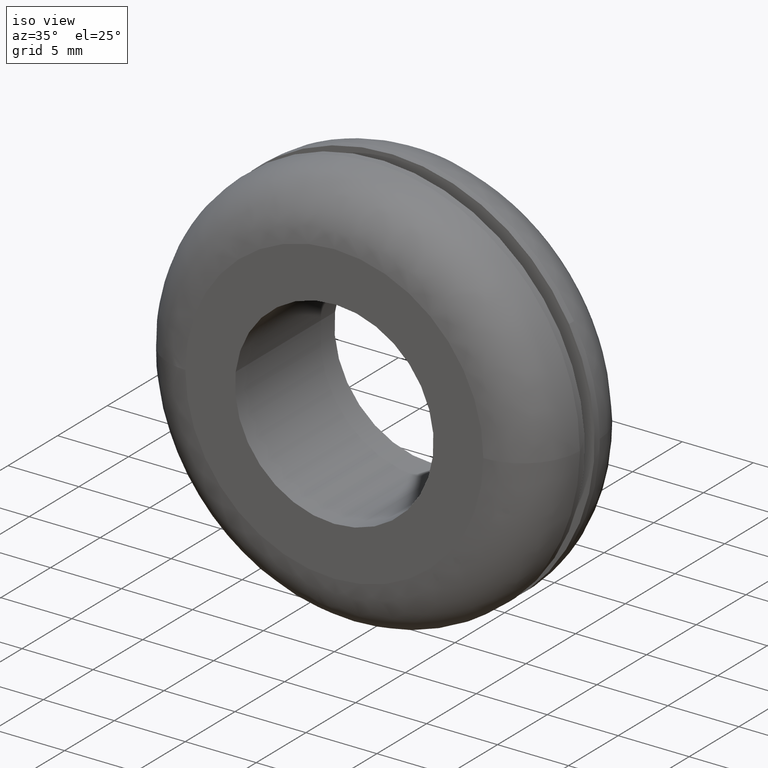
[diagram: clean part render]
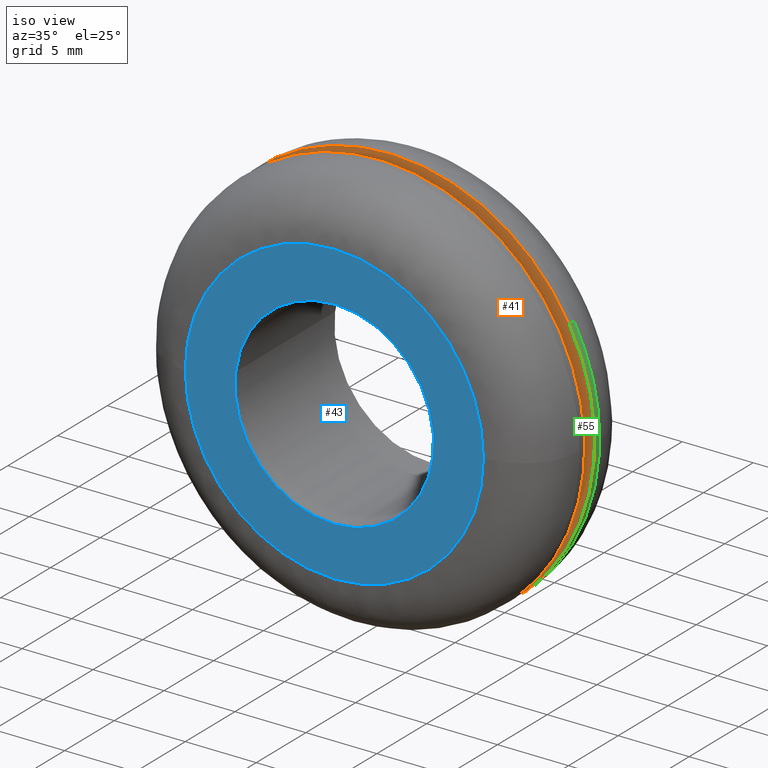
[diagram: same view with three faces highlighted in distinct colors, each labeled with its STEP entity id]
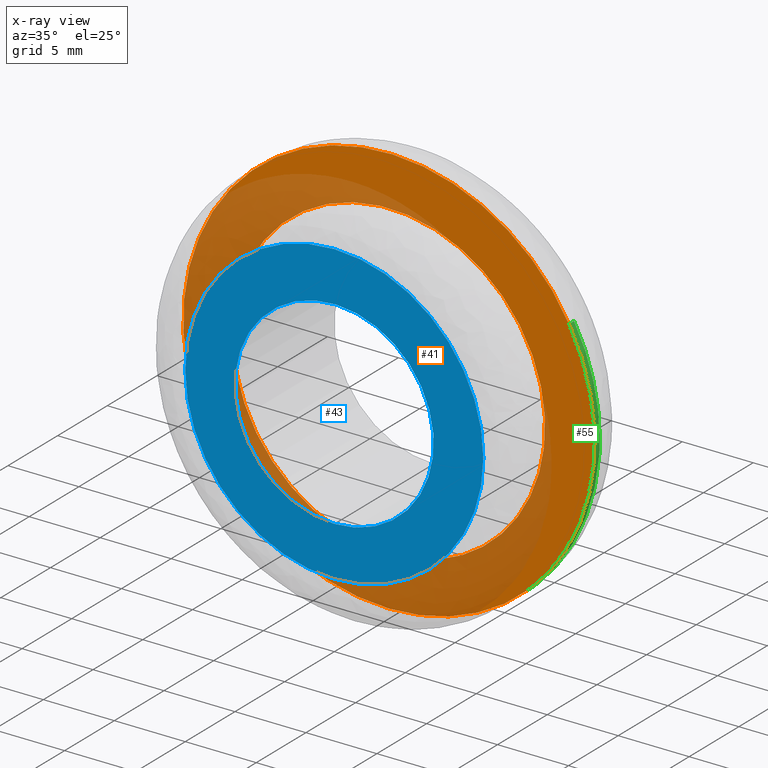
[diagram: x-ray of the same camera — body ghosted, the three highlighted faces saturated]
A machine part, iso view with three faces highlighted in distinct colors.
The next image is the same camera in x-ray (body ghosted, the three faces saturated) — at least one of them is partly hidden behind the body in this view.
Their STEP definitions:

[orange] entity #41 — the highlighted planar face has unit normal (0, 1, 0).
#41=ADVANCED_FACE('',(#68,#69),#67,.F.);
#67=PLANE('',#229);
#68=FACE_OUTER_BOUND('',#230,.T.);
#69=FACE_BOUND('',#231,.T.);
#226=CARTESIAN_POINT('',(-3.01376860484E+001,5.50000000000E+000,-1.88500029213E+001));
#227=DIRECTION('',(0.00000000000E+000,1.00000000000E+000,0.00000000000E+000));
#228=DIRECTION('',(0.00000000000E+000,0.00000000000E+000,1.00000000000E+000));
#229=AXIS2_PLACEMENT_3D('',#226,#227,#228);
#230=EDGE_LOOP('',(#394,#395,#396));
#231=EDGE_LOOP('',(#397,#398,#399));
#394=ORIENTED_EDGE('',*,*,#496,.T.);
#395=ORIENTED_EDGE('',*,*,#497,.T.);
#396=ORIENTED_EDGE('',*,*,#498,.T.);
#397=ORIENTED_EDGE('',*,*,#499,.F.);
#398=ORIENTED_EDGE('',*,*,#500,.F.);
#399=ORIENTED_EDGE('',*,*,#501,.F.);
#496=EDGE_CURVE('',#583,#584,#585,.T.);
#497=EDGE_CURVE('',#584,#591,#592,.T.);
#498=EDGE_CURVE('',#591,#583,#598,.T.);
#499=EDGE_CURVE('',#604,#605,#606,.T.);
#500=EDGE_CURVE('',#612,#604,#613,.T.);
#501=EDGE_CURVE('',#605,#612,#619,.T.);
#583=VERTEX_POINT('',#916);
#584=VERTEX_POINT('',#917);
#585=CIRCLE('',#921,1.45000009607E+001);
#591=VERTEX_POINT('',#922);
#592=CIRCLE('',#926,1.45000009607E+001);
#598=CIRCLE('',#930,1.45000009607E+001);
#604=VERTEX_POINT('',#931);
#605=VERTEX_POINT('',#932);
#606=CIRCLE('',#936,1.10000000000E+001);
#612=VERTEX_POINT('',#937);
#613=CIRCLE('',#941,1.10000000000E+001);
#619=CIRCLE('',#945,1.10000000000E+001);
#916=CARTESIAN_POINT('',(-4.95012947106E-014,5.50000000000E+000,-1.45000019213E+001));
#917=CARTESIAN_POINT('',(1.26863123456E+001,5.50000000000E+000,7.02193014173E+000));
#918=CARTESIAN_POINT('',(3.73583214142E-007,5.50000000000E+000,-9.60667623673E-007));
#919=DIRECTION('',(2.16564477060E-017,-1.00000000000E+000,4.28775760971E-016));
#920=DIRECTION('',(-2.57643611804E-008,-4.28775761529E-016,-1.00000000000E+000));
#921=AXIS2_PLACEMENT_3D('',#918,#919,#920);
#922=CARTESIAN_POINT('',(-1.26867233481E+001,5.50000000000E+000,-7.02118811585E+000));
#923=CARTESIAN_POINT('',(3.73583214142E-007,5.50000000000E+000,-9.60667623673E-007));
#924=DIRECTION('',(2.16564477060E-017,-1.00000000000E+000,4.28775760971E-016));
#925=DIRECTION('',(-2.57643611804E-008,-4.28775761529E-016,-1.00000000000E+000));
#926=AXIS2_PLACEMENT_3D('',#923,#924,#925);
#927=CARTESIAN_POINT('',(3.73583214142E-007,5.50000000000E+000,-9.60667623673E-007));
#928=DIRECTION('',(2.16564477060E-017,-1.00000000000E+000,4.28775760971E-016));
#929=DIRECTION('',(-2.57643611804E-008,-4.28775761529E-016,-1.00000000000E+000));
#930=AXIS2_PLACEMENT_3D('',#927,#928,#929);
#931=CARTESIAN_POINT('',(-1.09231047900E+001,5.50000000000E+000,1.29837658116E+000));
#932=CARTESIAN_POINT('',(-7.54951656745E-015,5.50000000000E+000,-1.10000000000E+001));
#933=CARTESIAN_POINT('',(1.80655490567E-012,5.50000000000E+000,3.97282207132E-012));
#934=DIRECTION('',(-4.00972834440E-016,-1.00000000000E+000,-3.37336201448E-015));
#935=DIRECTION('',(-1.64562807825E-013,3.37336201448E-015,-1.00000000000E+000));
#936=AXIS2_PLACEMENT_3D('',#933,#934,#935);
#937=CARTESIAN_POINT('',(1.09228802215E+001,5.50000000000E+000,-1.30026446011E+000));
#938=CARTESIAN_POINT('',(1.80655490567E-012,5.50000000000E+000,3.97282207132E-012));
#939=DIRECTION('',(-4.00972834440E-016,-1.00000000000E+000,-3.37336201448E-015));
#940=DIRECTION('',(-1.64562807825E-013,3.37336201448E-015,-1.00000000000E+000));
#941=AXIS2_PLACEMENT_3D('',#938,#939,#940);
#942=CARTESIAN_POINT('',(1.80655490567E-012,5.50000000000E+000,3.97282207132E-012));
#943=DIRECTION('',(-4.00972834440E-016,-1.00000000000E+000,-3.37336201448E-015));
#944=DIRECTION('',(-1.64562807825E-013,3.37336201448E-015,-1.00000000000E+000));
#945=AXIS2_PLACEMENT_3D('',#942,#943,#944);

[blue] entity #43 — the highlighted planar face has unit normal (0, 1, 0).
#43=ADVANCED_FACE('',(#90,#91),#89,.F.);
#89=PLANE('',#241);
#90=FACE_OUTER_BOUND('',#242,.T.);
#91=FACE_BOUND('',#243,.T.);
#238=CARTESIAN_POINT('',(-2.18238401754E+001,-1.60729600000E-015,-2.41500000000E+001));
#239=DIRECTION('',(0.00000000000E+000,1.00000000000E+000,0.00000000000E+000));
#240=DIRECTION('',(0.00000000000E+000,0.00000000000E+000,1.00000000000E+000));
#241=AXIS2_PLACEMENT_3D('',#238,#239,#240);
#242=EDGE_LOOP('',(#406,#407,#408));
#243=EDGE_LOOP('',(#409,#410,#411));
#406=ORIENTED_EDGE('',*,*,#508,.T.);
#407=ORIENTED_EDGE('',*,*,#509,.T.);
#408=ORIENTED_EDGE('',*,*,#510,.T.);
#409=ORIENTED_EDGE('',*,*,#511,.F.);
#410=ORIENTED_EDGE('',*,*,#512,.F.);
#411=ORIENTED_EDGE('',*,*,#513,.F.);
#508=EDGE_CURVE('',#667,#668,#669,.T.);
#509=EDGE_CURVE('',#668,#675,#676,.T.);
#510=EDGE_CURVE('',#675,#667,#682,.T.);
#511=EDGE_CURVE('',#688,#689,#690,.T.);
#512=EDGE_CURVE('',#696,#688,#697,.T.);
#513=EDGE_CURVE('',#689,#696,#703,.T.);
#667=VERTEX_POINT('',#976);
#668=VERTEX_POINT('',#977);
#669=CIRCLE('',#981,1.05000000000E+001);
#675=VERTEX_POINT('',#982);
#676=CIRCLE('',#986,1.05000000000E+001);
#682=CIRCLE('',#990,1.05000000000E+001);
#688=VERTEX_POINT('',#991);
#689=VERTEX_POINT('',#992);
#690=CIRCLE('',#996,6.99999999999E+000);
#696=VERTEX_POINT('',#997);
#697=CIRCLE('',#1001,6.99999999999E+000);
#703=CIRCLE('',#1005,6.99999999999E+000);
#976=CARTESIAN_POINT('',(2.17401511726E-015,1.42466723759E-015,1.05000000000E+001));
#977=CARTESIAN_POINT('',(-1.05000000000E+001,-2.52043855790E-016,1.59170792982E-007));
#978=CARTESIAN_POINT('',(-5.49249534743E-012,-2.52043881204E-016,2.48876474984E-011));
#979=DIRECTION('',(-9.55135231928E-033,-1.00000000000E+000,1.59686773218E-016));
#980=DIRECTION('',(5.23179383415E-013,1.59686773218E-016,1.00000000000E+000));
#981=AXIS2_PLACEMENT_3D('',#978,#979,#980);
#982=CARTESIAN_POINT('',(1.05000000000E+001,-2.52043889676E-016,-5.30274066184E-008));
#983=CARTESIAN_POINT('',(-5.49249534743E-012,-2.52043881204E-016,2.48876474984E-011));
#984=DIRECTION('',(-9.55135231928E-033,-1.00000000000E+000,1.59686773218E-016));
#985=DIRECTION('',(5.23179383415E-013,1.59686773218E-016,1.00000000000E+000));
#986=AXIS2_PLACEMENT_3D('',#983,#984,#985);
#987=CARTESIAN_POINT('',(-5.49249534743E-012,-2.52043881204E-016,2.48876474984E-011));
#988=DIRECTION('',(-9.55135231928E-033,-1.00000000000E+000,1.59686773218E-016));
#989=DIRECTION('',(5.23179383415E-013,1.59686773218E-016,1.00000000000E+000));
#990=AXIS2_PLACEMENT_3D('',#987,#988,#989);
#991=CARTESIAN_POINT('',(-6.95106698668E+000,-1.05064081744E-015,8.26237100631E-001));
#992=CARTESIAN_POINT('',(-2.88657986403E-015,8.55860199022E-016,-6.99999999998E+000));
#993=CARTESIAN_POINT('',(5.49826850715E-012,-1.10942576381E-015,1.21036514145E-011));
#994=DIRECTION('',(-4.18288671021E-017,-1.00000000000E+000,-2.80755137548E-016));
#995=DIRECTION('',(-7.85524423286E-013,2.80755137549E-016,-1.00000000000E+000));
#996=AXIS2_PLACEMENT_3D('',#993,#994,#995);
#997=CARTESIAN_POINT('',(6.95092377633E+000,-1.16786671094E-015,-8.27441028414E-001));
#998=CARTESIAN_POINT('',(5.49826850715E-012,-1.10942576381E-015,1.21036514145E-011));
#999=DIRECTION('',(-4.18288671021E-017,-1.00000000000E+000,-2.80755137548E-016));
#1000=DIRECTION('',(-7.85524423286E-013,2.80755137549E-016,-1.00000000000E+000));
#1001=AXIS2_PLACEMENT_3D('',#998,#999,#1000);
#1002=CARTESIAN_POINT('',(5.49826850715E-012,-1.10942576381E-015,1.21036514145E-011));
#1003=DIRECTION('',(-4.18288671021E-017,-1.00000000000E+000,-2.80755137548E-016));
#1004=DIRECTION('',(-7.85524423286E-013,2.80755137549E-016,-1.00000000000E+000));
#1005=AXIS2_PLACEMENT_3D('',#1002,#1003,#1004);

[green] entity #55 — the highlighted cylindrical surface (partial cylindrical patch) has radius 14.5 mm, axis along (0, 1, -0).
#55=ADVANCED_FACE('',(#211),#210,.T.);
#210=CYLINDRICAL_SURFACE('',#386,1.45000000000E+001);
#211=FACE_OUTER_BOUND('',#387,.T.);
#383=CARTESIAN_POINT('',(-1.02623754293E-015,6.01250000003E+000,3.46741052307E-015));
#384=DIRECTION('',(3.19754362181E-016,1.00000000000E+000,-3.24771086637E-016));
#385=DIRECTION('',(-8.74946427443E-001,1.22507368235E-016,-4.84219732254E-001));
#386=AXIS2_PLACEMENT_3D('',#383,#384,#385);
#387=EDGE_LOOP('',(#482,#483,#484,#485,#486,#487,#488,#489));
#482=ORIENTED_EDGE('',*,*,#496,.F.);
#483=ORIENTED_EDGE('',*,*,#498,.F.);
#484=ORIENTED_EDGE('',*,*,#539,.T.);
#485=ORIENTED_EDGE('',*,*,#528,.T.);
#486=ORIENTED_EDGE('',*,*,#527,.T.);
#487=ORIENTED_EDGE('',*,*,#526,.T.);
#488=ORIENTED_EDGE('',*,*,#534,.T.);
#489=ORIENTED_EDGE('',*,*,#540,.F.);
#496=EDGE_CURVE('',#583,#584,#585,.T.);
#498=EDGE_CURVE('',#591,#583,#598,.T.);
#526=EDGE_CURVE('',#789,#790,#791,.T.);
#527=EDGE_CURVE('',#797,#789,#798,.T.);
#528=EDGE_CURVE('',#804,#797,#805,.T.);
#534=EDGE_CURVE('',#790,#837,#844,.T.);
#539=EDGE_CURVE('',#591,#804,#874,.T.);
#540=EDGE_CURVE('',#584,#837,#880,.T.);
#583=VERTEX_POINT('',#916);
#584=VERTEX_POINT('',#917);
#585=CIRCLE('',#921,1.45000009607E+001);
#591=VERTEX_POINT('',#922);
#598=CIRCLE('',#930,1.45000009607E+001);
#789=VERTEX_POINT('',#1054);
#790=VERTEX_POINT('',#1055);
#791=CIRCLE('',#1059,1.45000000000E+001);
#797=VERTEX_POINT('',#1060);
#798=CIRCLE('',#1064,1.45000000000E+001);
#804=VERTEX_POINT('',#1065);
#805=CIRCLE('',#1069,1.45000000000E+001);
#837=VERTEX_POINT('',#1088);
#844=CIRCLE('',#1096,1.45000000000E+001);
#874=(BOUNDED_CURVE() B_SPLINE_CURVE(1,(#1111,#1112),.UNSPECIFIED.,.F.,.F.) B_SPLINE_CURVE_WITH_KNOTS((2,2),(8.33332538610E-002,9.16666666064E-001),.UNSPECIFIED.) CURVE() GEOMETRIC_REPRESENTATION_ITEM() RATIONAL_B_SPLINE_CURVE((1.00000000000E+000,1.00000000000E+000)) REPRESENTATION_ITEM('') );
#880=(BOUNDED_CURVE() B_SPLINE_CURVE(1,(#1113,#1114),.UNSPECIFIED.,.F.,.F.) B_SPLINE_CURVE_WITH_KNOTS((2,2),(8.33333333333E-002,9.16666665942E-001),.UNSPECIFIED.) CURVE() GEOMETRIC_REPRESENTATION_ITEM() RATIONAL_B_SPLINE_CURVE((7.50000000000E-001,7.50000000000E-001)) REPRESENTATION_ITEM('') );
#916=CARTESIAN_POINT('',(-4.95012947106E-014,5.50000000000E+000,-1.45000019213E+001));
#917=CARTESIAN_POINT('',(1.26863123456E+001,5.50000000000E+000,7.02193014173E+000));
#918=CARTESIAN_POINT('',(3.73583214142E-007,5.50000000000E+000,-9.60667623673E-007));
#919=DIRECTION('',(2.16564477060E-017,-1.00000000000E+000,4.28775760971E-016));
#920=DIRECTION('',(-2.57643611804E-008,-4.28775761529E-016,-1.00000000000E+000));
#921=AXIS2_PLACEMENT_3D('',#918,#919,#920);
#922=CARTESIAN_POINT('',(-1.26867233481E+001,5.50000000000E+000,-7.02118811585E+000));
#927=CARTESIAN_POINT('',(3.73583214142E-007,5.50000000000E+000,-9.60667623673E-007));
#928=DIRECTION('',(2.16564477060E-017,-1.00000000000E+000,4.28775760971E-016));
#929=DIRECTION('',(-2.57643611804E-008,-4.28775761529E-016,-1.00000000000E+000));
#930=AXIS2_PLACEMENT_3D('',#927,#928,#929);
#1054=CARTESIAN_POINT('',(1.44647022707E+001,6.00000000003E+000,-1.01113214785E+000));
#1055=CARTESIAN_POINT('',(1.45000000000E+001,5.99999999997E+000,2.93799056985E-006));
#1056=CARTESIAN_POINT('',(1.92912352759E-012,6.00000000033E+000,1.33226762955E-015));
#1057=DIRECTION('',(-2.46076863103E-011,-1.00000000000E+000,-4.99124664912E-011));
#1058=DIRECTION('',(-9.97565673840E-001,2.10672245932E-011,6.97332515756E-002));
#1059=AXIS2_PLACEMENT_3D('',#1056,#1057,#1058);
#1060=CARTESIAN_POINT('',(0.00000000000E+000,6.00000000000E+000,-1.45000000000E+001));
#1061=CARTESIAN_POINT('',(-1.08535402887E-012,6.00000000003E+000,1.15818465929E-012));
#1062=DIRECTION('',(4.33128954120E-017,-1.00000000000E+000,1.93279874864E-012));
#1063=DIRECTION('',(-7.48520019913E-014,1.93279874864E-012,1.00000000000E+000));
#1064=AXIS2_PLACEMENT_3D('',#1061,#1062,#1063);
#1065=CARTESIAN_POINT('',(-1.26867230924E+001,5.99999999797E+000,-7.02118630844E+000));
#1066=CARTESIAN_POINT('',(-3.55271367880E-015,6.00000000004E+000,0.00000000000E+000));
#1067=DIRECTION('',(4.84083131559E-012,-1.00000000000E+000,2.87115312813E-010));
#1068=DIRECTION('',(9.99921044204E-001,1.23254663181E-012,-1.25660398839E-002));
#1069=AXIS2_PLACEMENT_3D('',#1066,#1067,#1068);
#1088=CARTESIAN_POINT('',(1.26867244963E+001,6.00000000000E+000,7.02118377156E+000));
#1093=CARTESIAN_POINT('',(1.92912352759E-012,6.00000000033E+000,1.33226762955E-015));
#1094=DIRECTION('',(-2.46076863103E-011,-1.00000000000E+000,-4.99124664912E-011));
#1095=DIRECTION('',(-9.97565673840E-001,2.10672245932E-011,6.97332515756E-002));
#1096=AXIS2_PLACEMENT_3D('',#1093,#1094,#1095);
#1111=CARTESIAN_POINT('',(-1.26867231979E+001,5.49999995232E+000,-7.02118611769E+000));
#1112=CARTESIAN_POINT('',(-1.26867231979E+001,5.99999999966E+000,-7.02118611769E+000));
#1113=CARTESIAN_POINT('',(1.26867231979E+001,5.50000000000E+000,7.02118611769E+000));
#1114=CARTESIAN_POINT('',(1.26867231979E+001,5.99999999959E+000,7.02118611769E+000));